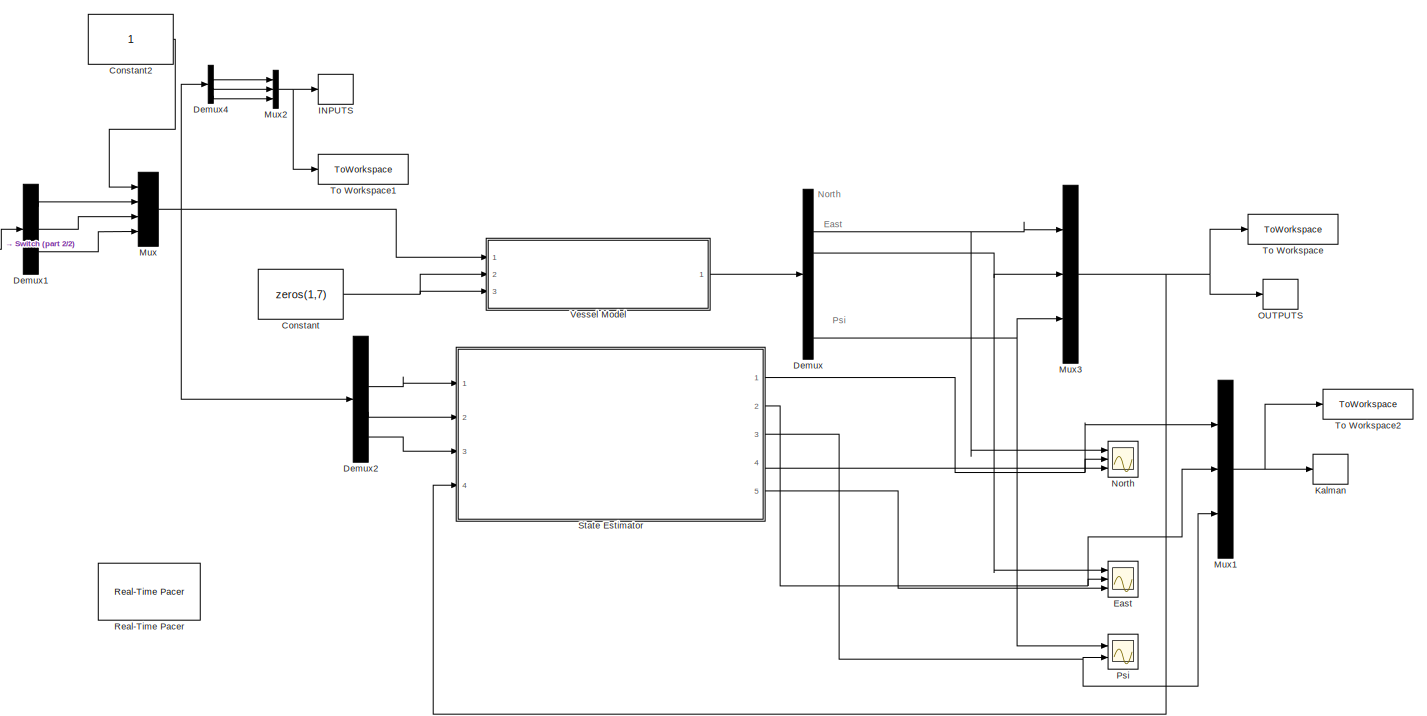
[diagram: root canvas - part 1/2, most of the canvas]
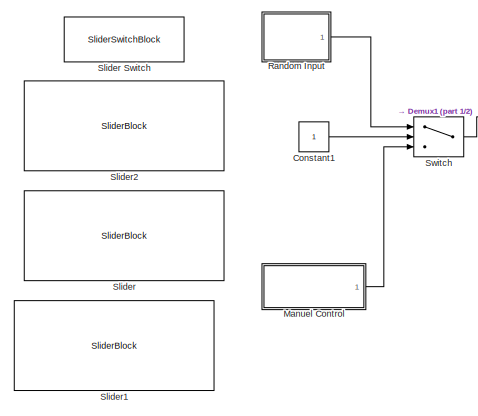
[diagram: root canvas - part 2/2, middle left region]
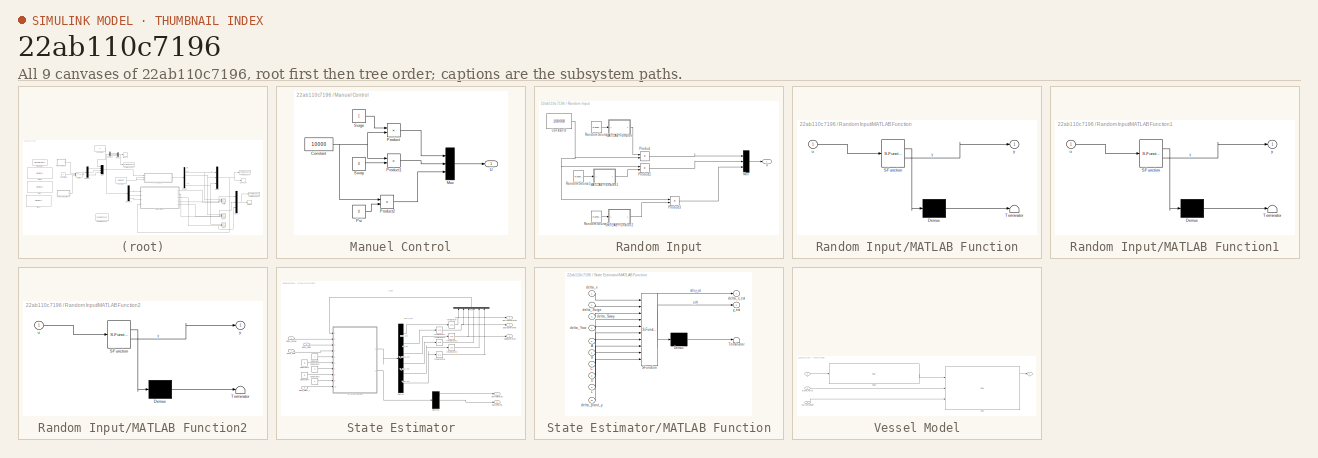
[diagram: thumbnail index - all 9 canvases of the model, root first then tree order]
MODEL slx_22ab110c7196
KIND model
CONFIG AbsTol = auto
CONFIG EnableMultiTasking = off
CONFIG FixedStep = 0.1
CONFIG MaxStep = auto
CONFIG MinStep = auto
CONFIG RelTol = 1e-3
CONFIG SampleTimeConstraint = Unconstrained
CONFIG SolverName = ode4
CONFIG StartTime = 0.0
CONFIG StopTime = 200
BLOCK [Constant] Constant
  Value = zeros(1,7)
BLOCK [Constant] Constant1
BLOCK [Constant] Constant2
BLOCK [Demux] Demux
  Outputs = 7
  Ports = [1, 7]
BLOCK [Demux] Demux1
  Outputs = 3
  Ports = [1, 3]
BLOCK [Demux] Demux2
  Ports = [1, 4]
BLOCK [Demux] Demux4
  Ports = [1, 4]
BLOCK [Scope] East
  Floating = off
  NumInputPorts = 3
  Ports = [3]
  ScopeSpecificationString = Simulink.scopes.TimeScopeBlockCfg('CurrentConfiguration', extmgr.ConfigurationSet(extmgr.Configuration('Core','General UI',true),extmgr.Configuration('Core','Source UI',true),extmgr.Configuration('Sources','WiredSimulink',true,'DataLoggingVariableName','ScopeData6'),extmgr.Configuration('Visuals','Time Domain',true,'SerializedDisplays',{struct('MinYLimReal','-1.28881','MaxYLimReal','8.99204','YLab...<+1717ch>
BLOCK [Record] INPUTS
  FileSettingsInternal = {"entries":[{"content":{"excelSettings":{"content":{},"type":"Streamout.ExcelSettings"}},"type":"Streamout.FileSettingStorage","uuid":""}],"packageUris":["http:\/\/schema.mathworks.com\/mf0\/streamout_blocks\/R2020a"],"version":"1.0"}  <repeated x3 — deduplicated; at blocks: INPUTS, Kalman, OUTPUTS>
  Ports = [1]
  RecordToWorkspace = on
  SignalsInternal = {"entries":[{"content":{"signals":[{"content":{"blockPath":[],"channel":[],"dimensions":[3],"domain":"","hasChildren":true,"lineColor":"#ff6929","plots":[],"port":1,"sid":[""],"signalID":6521,"signalName":"Mux2"},"type":"RecordBlkView.Signal","uuid":""},{"content":{"blockPath":[],"channel":[1],"dimensions":[3],"domain":"","lineColor":"#ff6929","parentID":6521,"plots":[1],"port":1,"sid":[""],"signa...<+653ch>
  VariableName = INPUT
  VisualizationBindings = {"sparklinesplugin":{"info":[{"bindingParametersList":[],"subplotID":1}]}}
BLOCK [Record] Kalman
  Layout = [1 1]
  Ports = [1]
  RecordToWorkspace = on
  SignalsInternal = {"entries":[{"content":{"signals":[{"content":{"blockPath":[],"channel":[],"dimensions":[3],"domain":"","hasChildren":true,"lineColor":"#64d413","plots":[],"port":1,"sid":[""],"signalID":6526,"signalName":"Mux1"},"type":"RecordBlkView.Signal","uuid":""},{"content":{"blockPath":[],"channel":[1],"dimensions":[3],"domain":"","lineColor":"#139fff","parentID":6526,"plots":[],"port":1,"sid":[""],"signal...<+650ch>
  VariableName = KALMAN
  VisualizationBindings = {"sparklinesplugin":{"info":[{"bindingParametersList":[],"subplotID":1}]}}
BLOCK [SubSystem] Manuel Control
  Ports = [0, 1]
  RequestExecContextInheritance = off
BLOCK [Constant] Manuel Control/Constant
  Value = 10000
BLOCK [Mux] Manuel Control/Mux
  DisplayOption = bar
  Inputs = 3
  Ports = [3, 1]
BLOCK [Product] Manuel Control/Product
  Ports = [2, 1]
BLOCK [Product] Manuel Control/Product1
  Ports = [2, 1]
BLOCK [Product] Manuel Control/Product2
  Ports = [2, 1]
BLOCK [Constant] Manuel Control/Psi
  Value = 0
BLOCK [Constant] Manuel Control/Surge
BLOCK [Constant] Manuel Control/Sway
  Value = 0
BLOCK [Outport] Manuel Control/U
BLOCK [Mux] Mux
  DisplayOption = bar
  Ports = [4, 1]
BLOCK [Mux] Mux1
  DisplayOption = bar
  Inputs = 3
  Ports = [3, 1]
BLOCK [Mux] Mux2
  DisplayOption = bar
  Inputs = 3
  Ports = [3, 1]
BLOCK [Mux] Mux3
  DisplayOption = bar
  Inputs = 3
  Ports = [3, 1]
BLOCK [Scope] North
  Floating = off
  NumInputPorts = 3
  Ports = [3]
  ScopeSpecificationString = Simulink.scopes.TimeScopeBlockCfg('CurrentConfiguration', extmgr.ConfigurationSet(extmgr.Configuration('Core','General UI',true),extmgr.Configuration('Core','Source UI',true),extmgr.Configuration('Sources','WiredSimulink',true,'DataLoggingVariableName','ScopeData5'),extmgr.Configuration('Visuals','Time Domain',true,'SerializedDisplays',{struct('MinYLimReal','-11.54229','MaxYLimReal','4.09187','YLa...<+1729ch>
BLOCK [Record] OUTPUTS
  Layout = [1 1]
  Ports = [1]
  RecordToWorkspace = on
  SignalsInternal = {"entries":[{"content":{"signals":[{"content":{"blockPath":[],"channel":[],"dimensions":[3],"domain":"","hasChildren":true,"lineColor":"#fe330a","plots":[],"port":1,"sid":[""],"signalID":6531,"signalName":"Mux3"},"type":"RecordBlkView.Signal","uuid":""},{"content":{"blockPath":[],"channel":[1],"dimensions":[3],"domain":"","lineColor":"#b746ff","parentID":6531,"plots":[],"port":1,"sid":[""],"signal...<+650ch>
  VariableName = OUTPUT
  VisualizationBindings = {"sparklinesplugin":{"info":[{"bindingParametersList":[],"subplotID":1}]}}
BLOCK [Scope] Psi
  Floating = off
  NumInputPorts = 2
  Ports = [2]
  ScopeSpecificationString = Simulink.scopes.TimeScopeBlockCfg('CurrentConfiguration', extmgr.ConfigurationSet(extmgr.Configuration('Core','General UI',true),extmgr.Configuration('Core','Source UI',true),extmgr.Configuration('Sources','WiredSimulink',true,'DataLoggingVariableName','ScopeData7'),extmgr.Configuration('Visuals','Time Domain',true,'SerializedDisplays',{struct('MinYLimReal','-0.46765','MaxYLimReal','1.30328','YLab...<+1583ch>
BLOCK [SubSystem] Random Input
  Ports = [0, 1]
  RequestExecContextInheritance = off
BLOCK [Constant] Random Input/Constant3
  Value = 100000
BLOCK [SubSystem] Random Input/MATLAB Function
  ErrorFcn = Stateflow.Translate.translate
  PermitHierarchicalResolution = ExplicitOnly
  Ports = [1, 1]
  RequestExecContextInheritance = off
  SFBlockType = MATLAB Function
  TreatAsAtomicUnit = on
BLOCK [Demux] Random Input/MATLAB Function/ Demux 
  Outputs = 1
  Ports = [1, 1]
BLOCK [S-Function] Random Input/MATLAB Function/ SFunction 
  EnableBusSupport = on
  FunctionName = sf_sfun
  PortCounts = [1 2]
  Ports = [1, 2]
  SFcnIsStateOwnerBlock = off
  SFunctionDeploymentMode = off
  Tag = Stateflow S-Function 2
BLOCK [Terminator] Random Input/MATLAB Function/ Terminator 
BLOCK [Inport] Random Input/MATLAB Function/u
BLOCK [Outport] Random Input/MATLAB Function/y
BLOCK [SubSystem] Random Input/MATLAB Function1
  ErrorFcn = Stateflow.Translate.translate
  PermitHierarchicalResolution = ExplicitOnly
  Ports = [1, 1]
  RequestExecContextInheritance = off
  SFBlockType = MATLAB Function
  TreatAsAtomicUnit = on
BLOCK [Demux] Random Input/MATLAB Function1/ Demux 
  Outputs = 1
  Ports = [1, 1]
BLOCK [S-Function] Random Input/MATLAB Function1/ SFunction 
  EnableBusSupport = on
  FunctionName = sf_sfun
  PortCounts = [1 2]
  Ports = [1, 2]
  SFcnIsStateOwnerBlock = off
  SFunctionDeploymentMode = off
  Tag = Stateflow S-Function 1
BLOCK [Terminator] Random Input/MATLAB Function1/ Terminator 
BLOCK [Inport] Random Input/MATLAB Function1/u
BLOCK [Outport] Random Input/MATLAB Function1/y
BLOCK [SubSystem] Random Input/MATLAB Function2
  ErrorFcn = Stateflow.Translate.translate
  PermitHierarchicalResolution = ExplicitOnly
  Ports = [1, 1]
  RequestExecContextInheritance = off
  SFBlockType = MATLAB Function
  TreatAsAtomicUnit = on
BLOCK [Demux] Random Input/MATLAB Function2/ Demux 
  Outputs = 1
  Ports = [1, 1]
BLOCK [S-Function] Random Input/MATLAB Function2/ SFunction 
  EnableBusSupport = on
  FunctionName = sf_sfun
  PortCounts = [1 2]
  Ports = [1, 2]
  SFcnIsStateOwnerBlock = off
  SFunctionDeploymentMode = off
  Tag = Stateflow S-Function 3
BLOCK [Terminator] Random Input/MATLAB Function2/ Terminator 
BLOCK [Inport] Random Input/MATLAB Function2/u
BLOCK [Outport] Random Input/MATLAB Function2/y
BLOCK [Mux] Random Input/Mux
  DisplayOption = bar
  Inputs = 3
  Ports = [3, 1]
BLOCK [Product] Random Input/Product
  Ports = [2, 1]
BLOCK [Product] Random Input/Product2
  Ports = [2, 1]
BLOCK [Product] Random Input/Product3
  Ports = [2, 1]
BLOCK [Reference] Random Input/Random Source  REF=dspsrcs4/Random
Source
  Ports = [0, 1]
  SourceBlock = dspsrcs4/Random\nSource
  SourceProductBaseCode = DS
  SourceType = Random Source
  UserDataPersistent = on
BLOCK [Reference] Random Input/Random Source1  REF=dspsrcs4/Random
Source
  Ports = [0, 1]
  SourceBlock = dspsrcs4/Random\nSource
  SourceProductBaseCode = DS
  SourceType = Random Source
  UserDataPersistent = on
BLOCK [Reference] Random Input/Random Source2  REF=dspsrcs4/Random
Source
  Ports = [0, 1]
  SourceBlock = dspsrcs4/Random\nSource
  SourceProductBaseCode = DS
  SourceType = Random Source
  UserDataPersistent = on
BLOCK [Outport] Random Input/U
BLOCK [Reference] Real-Time Pacer  REF=realtime_pacer_lib/Real-Time Pacer
  Ports = []
  SourceBlock = realtime_pacer_lib/Real-Time Pacer
  SourceProductName = Real-Time Pacer
  SourceType = RealTime_Pacer
BLOCK [SliderBlock] Slider
  ScaleMax = 28
  ScaleMin = -28
BLOCK [SliderSwitchBlock] Slider Switch
BLOCK [SliderBlock] Slider1
  ScaleMax = 28
  ScaleMin = -28
BLOCK [SliderBlock] Slider2
  ScaleMax = 28
  ScaleMin = -28
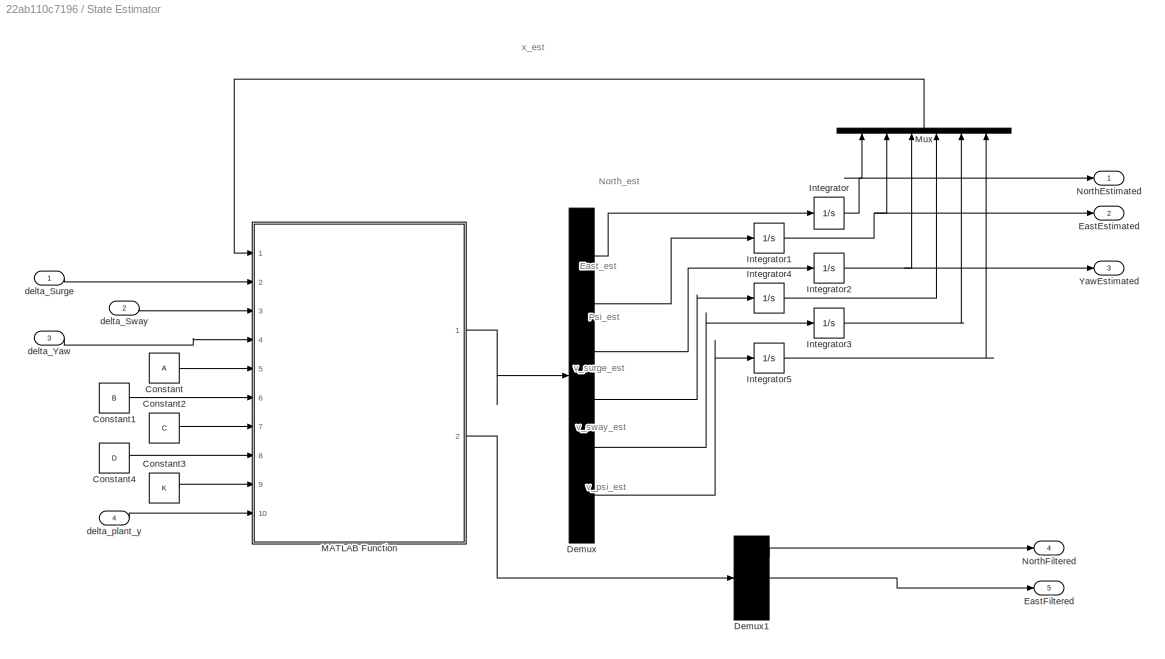
BLOCK [SubSystem] State Estimator
  Ports = [4, 5]
  RequestExecContextInheritance = off
BLOCK [Constant] State Estimator/Constant
  Value = A
BLOCK [Constant] State Estimator/Constant1
  Value = B
BLOCK [Constant] State Estimator/Constant2
  Value = C
BLOCK [Constant] State Estimator/Constant3
  Value = K
BLOCK [Constant] State Estimator/Constant4
  Value = D
BLOCK [Demux] State Estimator/Demux
  Outputs = 6
  Ports = [1, 6]
BLOCK [Demux] State Estimator/Demux1
  Outputs = 3
  Ports = [1, 3]
BLOCK [Outport] State Estimator/EastEstimated
  Port = 2
BLOCK [Outport] State Estimator/EastFiltered
  Port = 5
BLOCK [Integrator] State Estimator/Integrator
  LimitOutput = on
  LowerSaturationLimit = -100
  Ports = [1, 1]
  UpperSaturationLimit = 100
BLOCK [Integrator] State Estimator/Integrator1
  LimitOutput = on
  LowerSaturationLimit = -100
  Ports = [1, 1]
  UpperSaturationLimit = 100
BLOCK [Integrator] State Estimator/Integrator2
  InitialCondition = -0.0005
  LowerSaturationLimit = -0.02
  Ports = [1, 1]
  UpperSaturationLimit = 0.02
BLOCK [Integrator] State Estimator/Integrator3
  InitialCondition = 0.0067
  LimitOutput = on
  LowerSaturationLimit = -4
  Ports = [1, 1]
  UpperSaturationLimit = 4
BLOCK [Integrator] State Estimator/Integrator4
  InitialCondition = 0.1385
  LimitOutput = on
  LowerSaturationLimit = -4
  Ports = [1, 1]
  UpperSaturationLimit = 4
BLOCK [Integrator] State Estimator/Integrator5
  InitialCondition = -0.0017
  LimitOutput = on
  LowerSaturationLimit = -0.2
  Ports = [1, 1]
  UpperSaturationLimit = 0.2
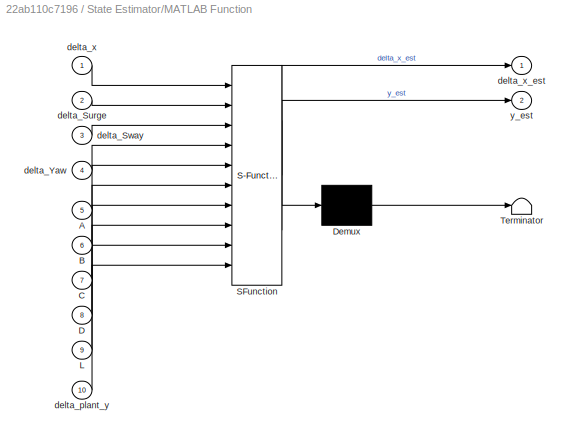
BLOCK [SubSystem] State Estimator/MATLAB Function
  ErrorFcn = Stateflow.Translate.translate
  PermitHierarchicalResolution = ExplicitOnly
  Ports = [10, 2]
  RequestExecContextInheritance = off
  SFBlockType = MATLAB Function
  TreatAsAtomicUnit = on
BLOCK [Demux] State Estimator/MATLAB Function/ Demux 
  Outputs = 1
  Ports = [1, 1]
BLOCK [S-Function] State Estimator/MATLAB Function/ SFunction 
  EnableBusSupport = on
  FunctionName = sf_sfun
  PortCounts = [10 3]
  Ports = [10, 3]
  SFcnIsStateOwnerBlock = off
  SFunctionDeploymentMode = off
  Tag = Stateflow S-Function 5
BLOCK [Terminator] State Estimator/MATLAB Function/ Terminator 
BLOCK [Inport] State Estimator/MATLAB Function/A
  Port = 5
BLOCK [Inport] State Estimator/MATLAB Function/B
  Port = 6
BLOCK [Inport] State Estimator/MATLAB Function/C
  Port = 7
BLOCK [Inport] State Estimator/MATLAB Function/D
  Port = 8
BLOCK [Inport] State Estimator/MATLAB Function/L
  Port = 9
BLOCK [Inport] State Estimator/MATLAB Function/delta_Surge
  Port = 2
BLOCK [Inport] State Estimator/MATLAB Function/delta_Sway
  Port = 3
BLOCK [Inport] State Estimator/MATLAB Function/delta_Yaw
  Port = 4
BLOCK [Inport] State Estimator/MATLAB Function/delta_plant_y
  Port = 10
BLOCK [Inport] State Estimator/MATLAB Function/delta_x
BLOCK [Outport] State Estimator/MATLAB Function/delta_x_est
BLOCK [Outport] State Estimator/MATLAB Function/y_est
  Port = 2
BLOCK [Mux] State Estimator/Mux
  DisplayOption = bar
  Inputs = 6
  NameLocation = right
  Ports = [6, 1]
BLOCK [Outport] State Estimator/NorthEstimated
BLOCK [Outport] State Estimator/NorthFiltered
  Port = 4
BLOCK [Outport] State Estimator/YawEstimated
  Port = 3
BLOCK [Inport] State Estimator/delta_Surge
BLOCK [Inport] State Estimator/delta_Sway
  Port = 2
BLOCK [Inport] State Estimator/delta_Yaw
  Port = 3
BLOCK [Inport] State Estimator/delta_plant_y
  Port = 4
BLOCK [Switch] Switch
  Criteria = u2 ~= 0
  InputSameDT = off
  SaturateOnIntegerOverflow = off
BLOCK [ToWorkspace] To Workspace
  FixptAsFi = on
  MaxDataPoints = inf
  Ports = [1]
  SampleTime = 0.1
  VariableName = Y
BLOCK [ToWorkspace] To Workspace1
  FixptAsFi = on
  MaxDataPoints = inf
  Ports = [1]
  SampleTime = 0.1
  VariableName = U
BLOCK [ToWorkspace] To Workspace2
  FixptAsFi = on
  MaxDataPoints = inf
  Ports = [1]
  SampleTime = 0.1
  VariableName = X
BLOCK [SubSystem] Vessel Model
  Ports = [3, 1]
  RequestExecContextInheritance = off
BLOCK [Inport] Vessel Model/Current_Velocity
  Port = 3
BLOCK [FMU] Vessel Model/FMU
  Axc = 106.0
  Ayc = 419.0
  Bv_0_ = 44000.0
  Bv_10_ = 0.0
  Bv_11_ = 0.0
  Bv_12_ = 0.0
  Bv_13_ = 0.0
  Bv_14_ = 0.0
  Bv_15_ = 0.0
  Bv_16_ = 0.0
  Bv_17_ = 0.0
  Bv_18_ = 0.0
  Bv_19_ = 0.0
  Bv_1_ = 0.0
  Bv_20_ = 0.0
  Bv_21_ = 686000.0
  Bv_22_ = 0.0
  Bv_23_ = 0.0
  Bv_24_ = 0.0
  Bv_25_ = 0.0
  Bv_26_ = 0.0
  Bv_27_ = 0.0
  Bv_28_ = 0.0
  Bv_29_ = 0.0
  Bv_2_ = 0.0
  Bv_30_ = 0.0
  Bv_31_ = 0.0
  Bv_32_ = 0.0
  Bv_33_ = 0.0
  Bv_34_ = 0.0
  Bv_35_ = 1.0259E+7
  Bv_3_ = 0.0
  Bv_4_ = 0.0
  Bv_5_ = 0.0
  Bv_6_ = 0.0
  Bv_7_ = 177000.0
  Bv_8_ = 0.0
  Bv_9_ = 0.0
  Cx = 1.0
  Cy = 0.7812
  Dp_0_ = 5300.0
  Dp_10_ = 0.0
  Dp_11_ = 294000.0
  Dp_12_ = 0.0
  Dp_13_ = 0.0
  Dp_14_ = 1900.0
  Dp_15_ = 0.0
  Dp_16_ = -68400.0
  Dp_17_ = 0.0
  Dp_18_ = 0.0
  Dp_19_ = -20300.0
  Dp_1_ = 0.0
  Dp_20_ = 0.0
  Dp_21_ = 7600.0
  Dp_22_ = 0.0
  Dp_23_ = -201300.0
  Dp_24_ = 0.0
  Dp_25_ = 0.0
  Dp_26_ = -68400.0
  Dp_27_ = 0.0
  Dp_28_ = 819700.0
  Dp_29_ = 0.0
  Dp_2_ = 0.0
  Dp_30_ = 0.0
  Dp_31_ = 294000.0
  Dp_32_ = 0.0
  Dp_33_ = -201300.0
  Dp_34_ = 0.0
  Dp_35_ = 1.8944E+6
  Dp_3_ = 0.0
  Dp_4_ = 0.0
  Dp_5_ = 0.0
  Dp_6_ = 0.0
  Dp_7_ = 21100.0
  Dp_8_ = 0.0
  Dp_9_ = -20300.0
  FMUMode = CoSimulation
  FMUName = VesselModel.fmu
  G_0_ = 0.0
  G_10_ = 0.0
  G_11_ = 0.0
  G_12_ = 0.0
  G_13_ = 0.0
  G_14_ = 2.44E+6
  G_15_ = 0.0
  G_16_ = 1.78E+6
  G_17_ = 0.0
  G_18_ = 0.0
  G_19_ = 0.0
  G_1_ = 0.0
  G_20_ = 0.0
  G_21_ = 5.11E+6
  G_22_ = 0.0
  G_23_ = 0.0
  G_24_ = 0.0
  G_25_ = 0.0
  G_26_ = 1.78E+6
  G_27_ = 0.0
  G_28_ = 1.2737E+8
  G_29_ = 0.0
  G_2_ = 0.0
  G_30_ = 0.0
  G_31_ = 0.0
  G_32_ = 0.0
  G_33_ = 0.0
  G_34_ = 0.0
  G_35_ = 0.0
  G_3_ = 0.0
  G_4_ = 0.0
  G_5_ = 0.0
  G_6_ = 0.0
  G_7_ = 0.0
  G_8_ = 0.0
  G_9_ = 0.0
  Lpp = 28.9
  MaskDisplay = disp('VesselModel');\nport_label('output',1,'Vessel_Position');\nport_label('output',2,'Vessel_Velocity');\nport_label('output',3,'Vessel_Acceleration');\nport_label('input',1,'Thrust');\nport_label('input',2,'Wave_Forces');\nport_label('input',3,'Current_Velocity');
  MaskPromptString = Axc|Ayc|Bv[0]|Bv[1]|Bv[2]|Bv[3]|Bv[4]|Bv[5]|Bv[6]|Bv[7]|Bv[8]|Bv[9]|Bv[10]|Bv[11]|Bv[12]|Bv[13]|Bv[14]|Bv[15]|Bv[16]|Bv[17]|Bv[18]|Bv[19]|Bv[20]|Bv[21]|Bv[22]|Bv[23]|Bv[24]|Bv[25]|Bv[26]|Bv[27]|Bv[28]|Bv[29]|Bv[30]|Bv[31]|Bv[32]|Bv[33]|Bv[34]|Bv[35]|Cx|Cy|Dp[0]|Dp[1]|Dp[2]|Dp[3]|Dp[4]|Dp[5]|Dp[6]|Dp[7]|Dp[8]|Dp[9]|Dp[10]|Dp[11]|Dp[12]|Dp[13]|Dp[14]|Dp[15]|Dp[16]|Dp[17]|Dp[18]|Dp[19]|Dp[20]|Dp[21]|...<+1501ch>
  MaskType = VesselModel [Co-Simulation, v2.0]
  Minv_0_ = 1.268E-6
  Minv_10_ = 0.0
  Minv_11_ = 1.0E-9
  Minv_12_ = 0.0
  Minv_13_ = 0.0
  Minv_14_ = 5.9200000000000011E-7
  Minv_15_ = 0.0
  Minv_16_ = -1.3E-8
  Minv_17_ = 0.0
  Minv_18_ = 0.0
  Minv_19_ = 1.2E-8
  Minv_1_ = 0.0
  Minv_20_ = 0.0
  Minv_21_ = 1.0000000000000001E-7
  Minv_22_ = 0.0
  Minv_23_ = -1.0E-9
  Minv_24_ = 0.0
  Minv_25_ = 0.0
  Minv_26_ = -1.3E-8
  Minv_27_ = 0.0
  Minv_28_ = 1.2E-8
  Minv_29_ = 0.0
  Minv_2_ = 0.0
  Minv_30_ = 0.0
  Minv_31_ = 1.0E-9
  Minv_32_ = 0.0
  Minv_33_ = -1.0E-9
  Minv_34_ = 0.0
  Minv_35_ = 2.0E-8
  Minv_3_ = 0.0
  Minv_4_ = 0.0
  Minv_5_ = 0.0
  Minv_6_ = 0.0
  Minv_7_ = 1.083E-6
  Minv_8_ = 0.0
  Minv_9_ = 1.2E-8
  N = 20.0
  Ports = [3, 3]
  X_DOF_DP_model_Integrator1__InitialCondition_0_ = 0.0
  X_DOF_DP_model_Integrator1__InitialCondition_1_ = 0.0
  X_DOF_DP_model_Integrator1__InitialCondition_2_ = 0.0
  X_DOF_DP_model_Integrator1__InitialCondition_3_ = 0.0
  X_DOF_DP_model_Integrator1__InitialCondition_4_ = 0.0
  X_DOF_DP_model_Integrator1__InitialCondition_5_ = 0.0
  X_DOF_DP_model_Integrator2_InitialCondition_0_ = 0.0
  X_DOF_DP_model_Integrator2_InitialCondition_1_ = 0.0
  X_DOF_DP_model_Integrator2_InitialCondition_2_ = 0.0
  X_DOF_DP_model_Integrator2_InitialCondition_3_ = 0.0
  X_DOF_DP_model_Integrator2_InitialCondition_4_ = 0.0
  X_DOF_DP_model_Integrator2_InitialCondition_5_ = 0.0
  X_DOF_DP_model_Rotate_yaw_T_Constant_Value = 0.0
  X_DOF_DP_model_Rotate_yaw_T_psi_Value = 0.0
  X_DOF_DP_model_X_DOF_transformation_Euler_angles_to_att = 0.0
  X_DOF_DP_model_X_DOF_transformation_Euler_angles_to_att_2 = 1.0
  X_DOF_DP_model_zero_Value = 0.0
  rho = 1025.0
BLOCK [FMU] Vessel Model/FMU2
  FMUMode = CoSimulation
  FMUName = ThrusterDynamics.fmu
  Heave_Thrust = struct('Value',0.0)
  MaskDisplay = disp('ThrusterDynamics');\nport_label('output',1,'Thrust');\nport_label('input',1,'Commanded_Thrust');
  MaskPromptString = Heave_Thrust|Merge1|Pitch_Thrust|Roll_Thrust|Thruster_Dynamics|enableDynamics|enableSaturation|maxThrust
  MaskType = ThrusterDynamics [Co-Simulation, v2.0]
  Merge1 = struct('InitialOutput',0.0)
  Pitch_Thrust = struct('Value',0.0)
  Ports = [1, 1]
  Roll_Thrust = struct('Value',0.0)
  Thruster_Dynamics = struct('Surge_Thrust_Dynamics',struct('A',-0.2,'C',0.2),'Sway_Thrust_Dynamics',struct('A',-0.2,'C',0.2),'Yaw_Thrust_Dynamics',struct('A',-0.2,'C',0.2))
  enableDynamics = on
  enableSaturation = on
  maxThrust = [1.0E+10,1.0E+10,1.0E+11]
BLOCK [Inport] Vessel Model/Wave_Force
  Port = 2
BLOCK [Inport] Vessel Model/u
BLOCK [Outport] Vessel Model/y
ANNOTATION (root): East
ANNOTATION (root): North
ANNOTATION (root): Psi
ANNOTATION State Estimator: East_est
ANNOTATION State Estimator: North_est
ANNOTATION State Estimator: Psi_est
ANNOTATION State Estimator: v_psi_est
ANNOTATION State Estimator: v_surge_est
ANNOTATION State Estimator: v_sway_est
ANNOTATION State Estimator: x_est
LINE Constant1:1 -> Switch:2
LINE Constant2:1 -> Mux:1
NET Constant:1 -> Vessel Model:2, Vessel Model:3
LINE Demux1:1 -> Mux:2
LINE Demux1:2 -> Mux:3
LINE Demux1:3 -> Mux:4
LINE Demux2:2 -> State Estimator:1
LINE Demux2:3 -> State Estimator:2
LINE Demux2:4 -> State Estimator:3
LINE Demux4:2 -> Mux2:1
LINE Demux4:3 -> Mux2:2
LINE Demux4:4 -> Mux2:3
NET Demux:2 -> Mux3:1, North:1
NET Demux:3 -> East:1, Mux3:2
NET Demux:7 -> Mux3:3, Psi:1
NET Manuel Control/Constant:1 -> Manuel Control/Product1:1, Manuel Control/Product2:1, Manuel Control/Product:2
LINE Manuel Control/Mux:1 -> Manuel Control/U:1
LINE Manuel Control/Product1:1 -> Manuel Control/Mux:2
LINE Manuel Control/Product2:1 -> Manuel Control/Mux:3
LINE Manuel Control/Product:1 -> Manuel Control/Mux:1
LINE Manuel Control/Psi:1 -> Manuel Control/Product2:2
LINE Manuel Control/Surge:1 -> Manuel Control/Product:1
LINE Manuel Control/Sway:1 -> Manuel Control/Product1:2
LINE Manuel Control:1 -> Switch:3
NET Mux1:1 -> Kalman:1, To Workspace2:1
NET Mux2:1 -> INPUTS:1, To Workspace1:1
NET Mux3:1 -> OUTPUTS:1, State Estimator:4, To Workspace:1
NET Mux:1 -> Demux2:1, Demux4:1, Vessel Model:1
NET Random Input/Constant3:1 -> Random Input/Product2:1, Random Input/Product3:1, Random Input/Product:2
LINE Random Input/MATLAB Function1:1 -> Random Input/Product2:2
LINE Random Input/MATLAB Function2:1 -> Random Input/Product3:2
LINE Random Input/MATLAB Function:1 -> Random Input/Product:1
LINE Random Input/Mux:1 -> Random Input/U:1
LINE Random Input/Product2:1 -> Random Input/Mux:2
LINE Random Input/Product3:1 -> Random Input/Mux:3
LINE Random Input/Product:1 -> Random Input/Mux:1
LINE Random Input/Random Source1:1 -> Random Input/MATLAB Function1:1
LINE Random Input/Random Source2:1 -> Random Input/MATLAB Function2:1
LINE Random Input/Random Source:1 -> Random Input/MATLAB Function:1
LINE Random Input:1 -> Switch:1
LINE State Estimator/Constant1:1 -> State Estimator/MATLAB Function:6
LINE State Estimator/Constant2:1 -> State Estimator/MATLAB Function:7
LINE State Estimator/Constant3:1 -> State Estimator/MATLAB Function:9
LINE State Estimator/Constant4:1 -> State Estimator/MATLAB Function:8
LINE State Estimator/Constant:1 -> State Estimator/MATLAB Function:5
LINE State Estimator/Demux1:1 -> State Estimator/NorthFiltered:1
LINE State Estimator/Demux1:2 -> State Estimator/EastFiltered:1
LINE State Estimator/Demux:1 -> State Estimator/Integrator:1
LINE State Estimator/Demux:2 -> State Estimator/Integrator1:1
LINE State Estimator/Demux:3 -> State Estimator/Integrator2:1
LINE State Estimator/Demux:4 -> State Estimator/Integrator4:1
LINE State Estimator/Demux:5 -> State Estimator/Integrator3:1
LINE State Estimator/Demux:6 -> State Estimator/Integrator5:1
NET State Estimator/Integrator1:1 -> State Estimator/EastEstimated:1, State Estimator/Mux:2
NET State Estimator/Integrator2:1 -> State Estimator/Mux:3, State Estimator/YawEstimated:1
LINE State Estimator/Integrator3:1 -> State Estimator/Mux:5
LINE State Estimator/Integrator4:1 -> State Estimator/Mux:4
LINE State Estimator/Integrator5:1 -> State Estimator/Mux:6
NET State Estimator/Integrator:1 -> State Estimator/Mux:1, State Estimator/NorthEstimated:1
LINE State Estimator/MATLAB Function:1 -> State Estimator/Demux:1
LINE State Estimator/MATLAB Function:2 -> State Estimator/Demux1:1
LINE State Estimator/Mux:1 -> State Estimator/MATLAB Function:1
LINE State Estimator/delta_Surge:1 -> State Estimator/MATLAB Function:2
LINE State Estimator/delta_Sway:1 -> State Estimator/MATLAB Function:3
LINE State Estimator/delta_Yaw:1 -> State Estimator/MATLAB Function:4
LINE State Estimator/delta_plant_y:1 -> State Estimator/MATLAB Function:10
NET State Estimator:1 -> Mux1:1, North:2
NET State Estimator:2 -> East:2, Mux1:2
NET State Estimator:3 -> Mux1:3, Psi:2
LINE State Estimator:4 -> North:3
LINE State Estimator:5 -> East:3
LINE Switch:1 -> Demux1:1
LINE Vessel Model/Current_Velocity:1 -> Vessel Model/FMU:3
LINE Vessel Model/FMU2:1 -> Vessel Model/FMU:1
LINE Vessel Model/FMU:1 -> Vessel Model/y:1
LINE Vessel Model/Wave_Force:1 -> Vessel Model/FMU:2
LINE Vessel Model/u:1 -> Vessel Model/FMU2:1
LINE Vessel Model:1 -> Demux:1
note: NET lines group one-source signal fan-out (src -> all destinations, sorted); 1:1 wires keep LINE
CHART Random Input/MATLAB Function1 states=1 transitions=1
  STATE_LABEL 'eML_blk_kernel()'
  STATE_LABEL 'SCRIPT:\nfunction y = fcn(u)\n\nif (u> 0)\n    y=1;\n\nelse\n    y=-1;\nend\n'
CHART Random Input/MATLAB Function states=1 transitions=1
  STATE_LABEL 'eML_blk_kernel()'
  STATE_LABEL 'SCRIPT:\nfunction y = fcn(u)\n\nif (u> 0)\n    y=1;\n\nelse\n    y=-1;\nend\n\n\n'
CHART Random Input/MATLAB Function2 states=1 transitions=1
  STATE_LABEL 'eML_blk_kernel()'
  STATE_LABEL 'SCRIPT:\nfunction y = fcn(u)\n\nif (u> 0)\n    y=1;\n\nelse\n    y=-1;\nend\n'
CHART State Estimator/MATLAB Function states=1 transitions=1
  STATE_LABEL 'eML_blk_kernel()'
  STATE_LABEL 'SCRIPT:\nfunction [delta_x_est,y_est]= state_estimator(delta_x, delta_Surge, delta_Sway, delta_Yaw,A, B,C, D,L,delta_plant_y)\n\ny_est = C*delta_x+D*[delta_Surge;delta_Sway;delta_Yaw];\ndelta_x_est = A*delta_x +B*[delta_Surge;delta_Sway;delta_Yaw] + L*(delta_plant_y-y_est);\n'
CHART  states=0 transitions=0
CHART  states=0 transitions=0
CHART  states=0 transitions=0
CHART  states=0 transitions=0
